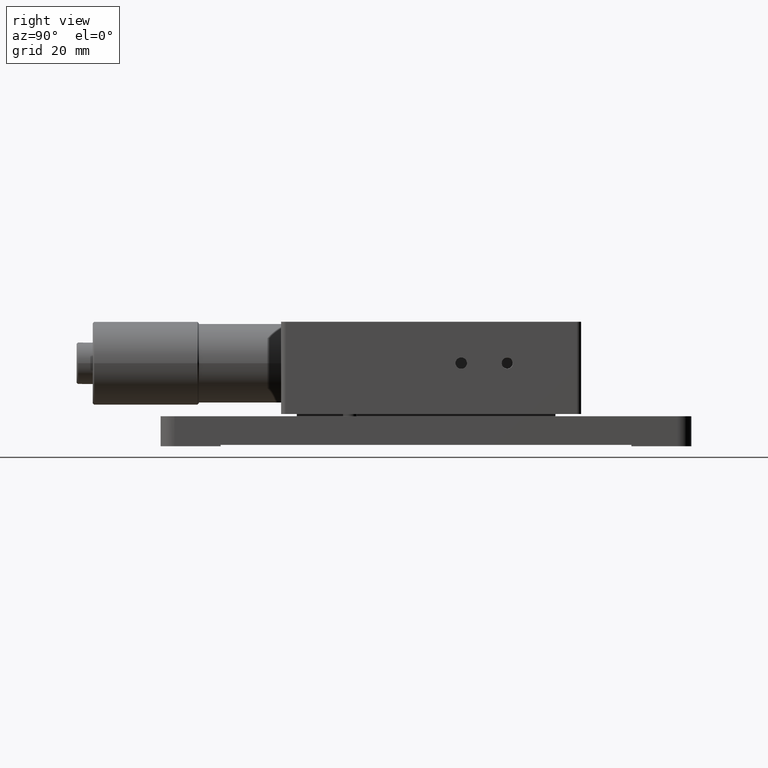
[diagram: clean part render]
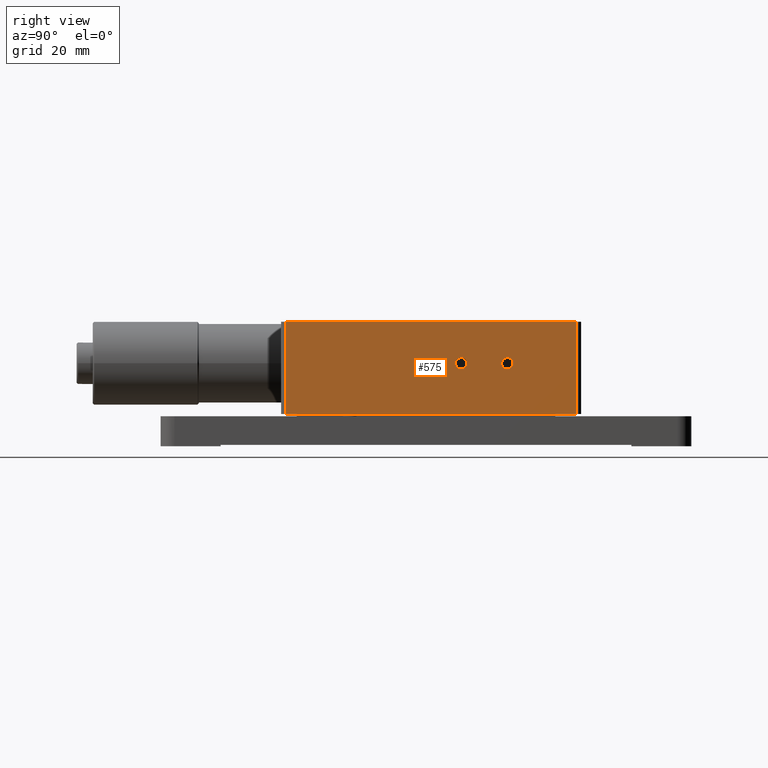
[diagram: same view with one face highlighted and labeled with its STEP entity id]
A machine part, right view. The second image highlights one B-rep face of the part: STEP entity #575.
In plain terms, the highlighted face is a freeform B-spline surface patch.
Its self-contained STEP definition (entity closure, byte-faithful):
#283=FACE_BOUND('',#1904,.T.);
#284=FACE_BOUND('',#1905,.T.);
#575=ADVANCED_FACE('',(#1228,#283,#284),#23944,.T.);
#1228=FACE_OUTER_BOUND('',#1903,.T.);
#1903=EDGE_LOOP('',(#3473,#3474,#3475,#3476));
#1904=EDGE_LOOP('',(#3477,#3478,#3479));
#1905=EDGE_LOOP('',(#3480,#3481,#3482));
#3473=ORIENTED_EDGE('',*,*,#19765,.T.);
#3474=ORIENTED_EDGE('',*,*,#19766,.T.);
#3475=ORIENTED_EDGE('',*,*,#19767,.T.);
#3476=ORIENTED_EDGE('',*,*,#19768,.T.);
#3477=ORIENTED_EDGE('',*,*,#19769,.T.);
#3478=ORIENTED_EDGE('',*,*,#19770,.T.);
#3479=ORIENTED_EDGE('',*,*,#19771,.T.);
#3480=ORIENTED_EDGE('',*,*,#19772,.T.);
#3481=ORIENTED_EDGE('',*,*,#19773,.T.);
#3482=ORIENTED_EDGE('',*,*,#19774,.T.);
#7098=PCURVE('',#23944,#10723);
#7099=PCURVE('',#23944,#10724);
#7100=PCURVE('',#23944,#10725);
#7101=PCURVE('',#23944,#10726);
#7102=PCURVE('',#23944,#10727);
#7103=PCURVE('',#23944,#10728);
#7104=PCURVE('',#23944,#10729);
#7105=PCURVE('',#23944,#10730);
#7106=PCURVE('',#23944,#10731);
#7107=PCURVE('',#23944,#10732);
#7184=PCURVE('',#24182,#10809);
#7189=PCURVE('',#24183,#10814);
#7190=PCURVE('',#24183,#10815);
#7223=PCURVE('',#24188,#10848);
#7228=PCURVE('',#24189,#10853);
#7229=PCURVE('',#24189,#10854);
#7339=PCURVE('',#24206,#10964);
#7353=PCURVE('',#23951,#10978);
#7359=PCURVE('',#24207,#10984);
#7423=PCURVE('',#23954,#11048);
#10723=DEFINITIONAL_REPRESENTATION('',(#14712),#50008);
#10724=DEFINITIONAL_REPRESENTATION('',(#14714),#50008);
#10725=DEFINITIONAL_REPRESENTATION('',(#14716),#50008);
#10726=DEFINITIONAL_REPRESENTATION('',(#14718),#50008);
#10727=DEFINITIONAL_REPRESENTATION('',(#21258),#50008);
#10728=DEFINITIONAL_REPRESENTATION('',(#21260),#50008);
#10729=DEFINITIONAL_REPRESENTATION('',(#21262),#50008);
#10730=DEFINITIONAL_REPRESENTATION('',(#21264),#50008);
#10731=DEFINITIONAL_REPRESENTATION('',(#21266),#50008);
#10732=DEFINITIONAL_REPRESENTATION('',(#21268),#50008);
#10809=DEFINITIONAL_REPRESENTATION('',(#14811),#50008);
#10814=DEFINITIONAL_REPRESENTATION('',(#14816),#50008);
#10815=DEFINITIONAL_REPRESENTATION('',(#14817),#50008);
#10848=DEFINITIONAL_REPRESENTATION('',(#14862),#50008);
#10853=DEFINITIONAL_REPRESENTATION('',(#14867),#50008);
#10854=DEFINITIONAL_REPRESENTATION('',(#14868),#50008);
#10964=DEFINITIONAL_REPRESENTATION('',(#15027),#50008);
#10978=DEFINITIONAL_REPRESENTATION('',(#15040),#50008);
#10984=DEFINITIONAL_REPRESENTATION('',(#15045),#50008);
#11048=DEFINITIONAL_REPRESENTATION('',(#15112),#50008);
#14711=B_SPLINE_CURVE_WITH_KNOTS('',1,(#34931,#34932),.UNSPECIFIED.,.F.,
 .F.,(2,2),(-20.,0.),.UNSPECIFIED.);
#14712=B_SPLINE_CURVE_WITH_KNOTS('',1,(#34933,#34934),.UNSPECIFIED.,.F.,
 .F.,(2,2),(-20.,0.),.UNSPECIFIED.);
#14713=B_SPLINE_CURVE_WITH_KNOTS('',1,(#34935,#34936),.UNSPECIFIED.,.F.,
 .F.,(2,2),(-63.0000000000001,0.),.UNSPECIFIED.);
#14714=B_SPLINE_CURVE_WITH_KNOTS('',1,(#34937,#34938),.UNSPECIFIED.,.F.,
 .F.,(2,2),(-63.0000000000001,0.),.UNSPECIFIED.);
#14715=B_SPLINE_CURVE_WITH_KNOTS('',1,(#34939,#34940),.UNSPECIFIED.,.F.,
 .F.,(2,2),(-20.,0.),.UNSPECIFIED.);
#14716=B_SPLINE_CURVE_WITH_KNOTS('',1,(#34941,#34942),.UNSPECIFIED.,.F.,
 .F.,(2,2),(-20.,0.),.UNSPECIFIED.);
#14717=B_SPLINE_CURVE_WITH_KNOTS('',1,(#34943,#34944),.UNSPECIFIED.,.F.,
 .F.,(2,2),(0.,63.0000000000001),.UNSPECIFIED.);
#14718=B_SPLINE_CURVE_WITH_KNOTS('',1,(#34945,#34946),.UNSPECIFIED.,.F.,
 .F.,(2,2),(0.,63.0000000000001),.UNSPECIFIED.);
#14811=B_SPLINE_CURVE_WITH_KNOTS('',1,(#35338,#35339),.UNSPECIFIED.,.F.,
 .F.,(2,2),(5.79388225138297,7.7251763351773),.UNSPECIFIED.);
#14816=B_SPLINE_CURVE_WITH_KNOTS('',1,(#35356,#35357),.UNSPECIFIED.,.F.,
 .F.,(2,2),(3.86258816758865,5.79388225138297),.UNSPECIFIED.);
#14817=B_SPLINE_CURVE_WITH_KNOTS('',1,(#35358,#35359),.UNSPECIFIED.,.F.,
 .F.,(2,2),(0.,3.86258816758865),.UNSPECIFIED.);
#14862=B_SPLINE_CURVE_WITH_KNOTS('',1,(#35503,#35504),.UNSPECIFIED.,.F.,
 .F.,(2,2),(5.79388225138298,7.7251763351773),.UNSPECIFIED.);
#14867=B_SPLINE_CURVE_WITH_KNOTS('',1,(#35521,#35522),.UNSPECIFIED.,.F.,
 .F.,(2,2),(3.86258816758865,5.79388225138298),.UNSPECIFIED.);
#14868=B_SPLINE_CURVE_WITH_KNOTS('',1,(#35523,#35524),.UNSPECIFIED.,.F.,
 .F.,(2,2),(0.,3.86258816758865),.UNSPECIFIED.);
#15027=B_SPLINE_CURVE_WITH_KNOTS('',1,(#36237,#36238),.UNSPECIFIED.,.F.,
 .F.,(2,2),(-20.,0.),.UNSPECIFIED.);
#15040=B_SPLINE_CURVE_WITH_KNOTS('',1,(#36288,#36289),.UNSPECIFIED.,.F.,
 .F.,(2,2),(0.,63.0000000000001),.UNSPECIFIED.);
#15045=B_SPLINE_CURVE_WITH_KNOTS('',1,(#36307,#36308),.UNSPECIFIED.,.F.,
 .F.,(2,2),(-20.,0.),.UNSPECIFIED.);
#15112=B_SPLINE_CURVE_WITH_KNOTS('',1,(#36567,#36568),.UNSPECIFIED.,.F.,
 .F.,(2,2),(-63.0000000000001,0.),.UNSPECIFIED.);
#17910=SURFACE_CURVE('',#14711,(#7098,#7359),.PCURVE_S1.);
#17911=SURFACE_CURVE('',#14713,(#7099,#7423),.PCURVE_S1.);
#17912=SURFACE_CURVE('',#14715,(#7100,#7339),.PCURVE_S1.);
#17913=SURFACE_CURVE('',#14717,(#7101,#7353),.PCURVE_S1.);
#17914=SURFACE_CURVE('',#21257,(#7102,#7228),.PCURVE_S1.);
#17915=SURFACE_CURVE('',#21259,(#7103,#7223),.PCURVE_S1.);
#17916=SURFACE_CURVE('',#21261,(#7104,#7229),.PCURVE_S1.);
#17917=SURFACE_CURVE('',#21263,(#7105,#7189),.PCURVE_S1.);
#17918=SURFACE_CURVE('',#21265,(#7106,#7184),.PCURVE_S1.);
#17919=SURFACE_CURVE('',#21267,(#7107,#7190),.PCURVE_S1.);
#19765=EDGE_CURVE('',#22929,#22930,#17910,.T.);
#19766=EDGE_CURVE('',#22930,#22931,#17911,.T.);
#19767=EDGE_CURVE('',#22931,#22932,#17912,.T.);
#19768=EDGE_CURVE('',#22932,#22929,#17913,.T.);
#19769=EDGE_CURVE('',#22934,#22993,#17914,.T.);
#19770=EDGE_CURVE('',#22993,#22933,#17915,.T.);
#19771=EDGE_CURVE('',#22933,#22934,#17916,.T.);
#19772=EDGE_CURVE('',#22936,#22974,#17917,.T.);
#19773=EDGE_CURVE('',#22974,#22935,#17918,.T.);
#19774=EDGE_CURVE('',#22935,#22936,#17919,.T.);
#21257=(
BOUNDED_CURVE()
B_SPLINE_CURVE(2,(#34947,#34948,#34949),.UNSPECIFIED.,.F.,.F.)
B_SPLINE_CURVE_WITH_KNOTS((3,3),(3.86258816758865,5.79388225138298),
 .UNSPECIFIED.)
CURVE()
GEOMETRIC_REPRESENTATION_ITEM()
RATIONAL_B_SPLINE_CURVE((1.,0.707106781186547,1.))
REPRESENTATION_ITEM('')
);
#21258=(
BOUNDED_CURVE()
B_SPLINE_CURVE(2,(#34950,#34951,#34952),.UNSPECIFIED.,.F.,.F.)
B_SPLINE_CURVE_WITH_KNOTS((3,3),(3.86258816758865,5.79388225138298),
 .UNSPECIFIED.)
CURVE()
GEOMETRIC_REPRESENTATION_ITEM()
RATIONAL_B_SPLINE_CURVE((1.,0.707106781186548,1.))
REPRESENTATION_ITEM('')
);
#21259=(
BOUNDED_CURVE()
B_SPLINE_CURVE(2,(#34953,#34954,#34955),.UNSPECIFIED.,.F.,.F.)
B_SPLINE_CURVE_WITH_KNOTS((3,3),(5.79388225138298,7.7251763351773),
 .UNSPECIFIED.)
CURVE()
GEOMETRIC_REPRESENTATION_ITEM()
RATIONAL_B_SPLINE_CURVE((1.,0.707106781186548,1.))
REPRESENTATION_ITEM('')
);
#21260=(
BOUNDED_CURVE()
B_SPLINE_CURVE(2,(#34956,#34957,#34958),.UNSPECIFIED.,.F.,.F.)
B_SPLINE_CURVE_WITH_KNOTS((3,3),(5.79388225138298,7.7251763351773),
 .UNSPECIFIED.)
CURVE()
GEOMETRIC_REPRESENTATION_ITEM()
RATIONAL_B_SPLINE_CURVE((1.,0.707106781186548,1.))
REPRESENTATION_ITEM('')
);
#21261=(
BOUNDED_CURVE()
B_SPLINE_CURVE(2,(#34959,#34960,#34961,#34962,#34963),.UNSPECIFIED.,.F.,
 .F.)
B_SPLINE_CURVE_WITH_KNOTS((3,2,3),(0.,1.93129408379433,3.86258816758865),
 .UNSPECIFIED.)
CURVE()
GEOMETRIC_REPRESENTATION_ITEM()
RATIONAL_B_SPLINE_CURVE((1.,0.707106781186547,1.,0.707106781186547,1.))
REPRESENTATION_ITEM('')
);
#21262=(
BOUNDED_CURVE()
B_SPLINE_CURVE(2,(#34964,#34965,#34966,#34967,#34968),.UNSPECIFIED.,.F.,
 .F.)
B_SPLINE_CURVE_WITH_KNOTS((3,2,3),(0.,1.93129408379433,3.86258816758865),
 .UNSPECIFIED.)
CURVE()
GEOMETRIC_REPRESENTATION_ITEM()
RATIONAL_B_SPLINE_CURVE((1.,0.707106781186548,1.,0.707106781186548,1.))
REPRESENTATION_ITEM('')
);
#21263=(
BOUNDED_CURVE()
B_SPLINE_CURVE(2,(#34969,#34970,#34971),.UNSPECIFIED.,.F.,.F.)
B_SPLINE_CURVE_WITH_KNOTS((3,3),(3.86258816758865,5.79388225138297),
 .UNSPECIFIED.)
CURVE()
GEOMETRIC_REPRESENTATION_ITEM()
RATIONAL_B_SPLINE_CURVE((1.,0.707106781186547,1.))
REPRESENTATION_ITEM('')
);
#21264=(
BOUNDED_CURVE()
B_SPLINE_CURVE(2,(#34972,#34973,#34974),.UNSPECIFIED.,.F.,.F.)
B_SPLINE_CURVE_WITH_KNOTS((3,3),(3.86258816758865,5.79388225138297),
 .UNSPECIFIED.)
CURVE()
GEOMETRIC_REPRESENTATION_ITEM()
RATIONAL_B_SPLINE_CURVE((1.,0.707106781186548,1.))
REPRESENTATION_ITEM('')
);
#21265=(
BOUNDED_CURVE()
B_SPLINE_CURVE(2,(#34975,#34976,#34977),.UNSPECIFIED.,.F.,.F.)
B_SPLINE_CURVE_WITH_KNOTS((3,3),(5.79388225138297,7.7251763351773),
 .UNSPECIFIED.)
CURVE()
GEOMETRIC_REPRESENTATION_ITEM()
RATIONAL_B_SPLINE_CURVE((1.,0.707106781186548,1.))
REPRESENTATION_ITEM('')
);
#21266=(
BOUNDED_CURVE()
B_SPLINE_CURVE(2,(#34978,#34979,#34980),.UNSPECIFIED.,.F.,.F.)
B_SPLINE_CURVE_WITH_KNOTS((3,3),(5.79388225138297,7.7251763351773),
 .UNSPECIFIED.)
CURVE()
GEOMETRIC_REPRESENTATION_ITEM()
RATIONAL_B_SPLINE_CURVE((1.,0.707106781186548,1.))
REPRESENTATION_ITEM('')
);
#21267=(
BOUNDED_CURVE()
B_SPLINE_CURVE(2,(#34981,#34982,#34983,#34984,#34985),.UNSPECIFIED.,.F.,
 .F.)
B_SPLINE_CURVE_WITH_KNOTS((3,2,3),(0.,1.93129408379432,3.86258816758865),
 .UNSPECIFIED.)
CURVE()
GEOMETRIC_REPRESENTATION_ITEM()
RATIONAL_B_SPLINE_CURVE((1.,0.707106781186547,1.,0.707106781186547,1.))
REPRESENTATION_ITEM('')
);
#21268=(
BOUNDED_CURVE()
B_SPLINE_CURVE(2,(#34986,#34987,#34988,#34989,#34990),.UNSPECIFIED.,.F.,
 .F.)
B_SPLINE_CURVE_WITH_KNOTS((3,2,3),(0.,1.93129408379432,3.86258816758865),
 .UNSPECIFIED.)
CURVE()
GEOMETRIC_REPRESENTATION_ITEM()
RATIONAL_B_SPLINE_CURVE((1.,0.707106781186548,1.,0.707106781186548,1.))
REPRESENTATION_ITEM('')
);
#22929=VERTEX_POINT('',#30572);
#22930=VERTEX_POINT('',#30573);
#22931=VERTEX_POINT('',#30574);
#22932=VERTEX_POINT('',#30575);
#22933=VERTEX_POINT('',#30576);
#22934=VERTEX_POINT('',#30577);
#22935=VERTEX_POINT('',#30578);
#22936=VERTEX_POINT('',#30579);
#22974=VERTEX_POINT('',#30617);
#22993=VERTEX_POINT('',#30636);
#23944=B_SPLINE_SURFACE_WITH_KNOTS('',1,1,((#25894,#25895),(#25896,#25897)),
 .UNSPECIFIED.,.F.,.F.,.F.,(2,2),(2,2),(-10.37,13.87),(-37.92,37.9200000000001),
 .UNSPECIFIED.);
#23951=B_SPLINE_SURFACE_WITH_KNOTS('',1,1,((#26520,#26521),(#26522,#26523)),
 .UNSPECIFIED.,.F.,.F.,.F.,(2,2),(2,2),(-12.4743956043956,65.7656043956045),
(10.93,28.57),.UNSPECIFIED.);
#23954=B_SPLINE_SURFACE_WITH_KNOTS('',1,1,((#26678,#26679),(#26680,#26681)),
 .UNSPECIFIED.,.F.,.F.,.F.,(2,2),(2,2),(-32.52,32.52),(-39.12,39.1200000000001),
 .UNSPECIFIED.);
#24182=(
BOUNDED_SURFACE()
B_SPLINE_SURFACE(1,2,((#26082,#26083,#26084,#26085,#26086,#26087,#26088,
#26089,#26090),(#26091,#26092,#26093,#26094,#26095,#26096,#26097,#26098,
#26099)),.UNSPECIFIED.,.F.,.F.,.F.)
B_SPLINE_SURFACE_WITH_KNOTS((2,2),(3,2,2,2,3),(0.,8.34000000000012),(0.,
1.5707963267949,3.14159265358979,4.71238898038469,6.28318530717959),
 .UNSPECIFIED.)
GEOMETRIC_REPRESENTATION_ITEM()
RATIONAL_B_SPLINE_SURFACE(((1.,0.707106781186548,1.,0.707106781186548,1.,
0.707106781186548,1.,0.707106781186548,1.),(1.,0.707106781186548,1.,0.707106781186548,
1.,0.707106781186548,1.,0.707106781186548,1.)))
REPRESENTATION_ITEM('')
SURFACE()
);
#24183=(
BOUNDED_SURFACE()
B_SPLINE_SURFACE(1,2,((#26100,#26101,#26102,#26103,#26104,#26105,#26106,
#26107,#26108),(#26109,#26110,#26111,#26112,#26113,#26114,#26115,#26116,
#26117)),.UNSPECIFIED.,.F.,.F.,.F.)
B_SPLINE_SURFACE_WITH_KNOTS((2,2),(3,2,2,2,3),(0.,8.34000000000012),(0.,
1.5707963267949,3.14159265358979,4.71238898038469,6.28318530717959),
 .UNSPECIFIED.)
GEOMETRIC_REPRESENTATION_ITEM()
RATIONAL_B_SPLINE_SURFACE(((1.,0.707106781186548,1.,0.707106781186548,1.,
0.707106781186548,1.,0.707106781186548,1.),(1.,0.707106781186548,1.,0.707106781186548,
1.,0.707106781186548,1.,0.707106781186548,1.)))
REPRESENTATION_ITEM('')
SURFACE()
);
#24188=(
BOUNDED_SURFACE()
B_SPLINE_SURFACE(1,2,((#26194,#26195,#26196,#26197,#26198,#26199,#26200,
#26201,#26202),(#26203,#26204,#26205,#26206,#26207,#26208,#26209,#26210,
#26211)),.UNSPECIFIED.,.F.,.F.,.F.)
B_SPLINE_SURFACE_WITH_KNOTS((2,2),(3,2,2,2,3),(0.,6.96),(0.,1.5707963267949,
3.14159265358979,4.71238898038469,6.28318530717959),.UNSPECIFIED.)
GEOMETRIC_REPRESENTATION_ITEM()
RATIONAL_B_SPLINE_SURFACE(((1.,0.707106781186548,1.,0.707106781186548,1.,
0.707106781186548,1.,0.707106781186548,1.),(1.,0.707106781186548,1.,0.707106781186548,
1.,0.707106781186548,1.,0.707106781186548,1.)))
REPRESENTATION_ITEM('')
SURFACE()
);
#24189=(
BOUNDED_SURFACE()
B_SPLINE_SURFACE(1,2,((#26212,#26213,#26214,#26215,#26216,#26217,#26218,
#26219,#26220),(#26221,#26222,#26223,#26224,#26225,#26226,#26227,#26228,
#26229)),.UNSPECIFIED.,.F.,.F.,.F.)
B_SPLINE_SURFACE_WITH_KNOTS((2,2),(3,2,2,2,3),(0.,6.96),(0.,1.5707963267949,
3.14159265358979,4.71238898038469,6.28318530717959),.UNSPECIFIED.)
GEOMETRIC_REPRESENTATION_ITEM()
RATIONAL_B_SPLINE_SURFACE(((1.,0.707106781186548,1.,0.707106781186548,1.,
0.707106781186548,1.,0.707106781186548,1.),(1.,0.707106781186548,1.,0.707106781186548,
1.,0.707106781186548,1.,0.707106781186548,1.)))
REPRESENTATION_ITEM('')
SURFACE()
);
#24206=(
BOUNDED_SURFACE()
B_SPLINE_SURFACE(2,1,((#26502,#26503),(#26504,#26505),(#26506,#26507),(#26508,
#26509),(#26510,#26511),(#26512,#26513),(#26514,#26515),(#26516,#26517),
(#26518,#26519)),.UNSPECIFIED.,.T.,.F.,.F.)
B_SPLINE_SURFACE_WITH_KNOTS((3,2,2,2,3),(2,2),(0.,1.5707963267949,3.14159265358979,
4.71238898038469,6.28318530717959),(0.,24.24),.UNSPECIFIED.)
GEOMETRIC_REPRESENTATION_ITEM()
RATIONAL_B_SPLINE_SURFACE(((1.,1.),(0.707106781186548,0.707106781186548),
(1.,1.),(0.707106781186548,0.707106781186548),(1.,1.),(0.707106781186548,
0.707106781186548),(1.,1.),(0.707106781186548,0.707106781186548),(1.,1.)))
REPRESENTATION_ITEM('')
SURFACE()
);
#24207=(
BOUNDED_SURFACE()
B_SPLINE_SURFACE(2,1,((#26524,#26525),(#26526,#26527),(#26528,#26529),(#26530,
#26531),(#26532,#26533),(#26534,#26535),(#26536,#26537),(#26538,#26539),
(#26540,#26541)),.UNSPECIFIED.,.T.,.F.,.F.)
B_SPLINE_SURFACE_WITH_KNOTS((3,2,2,2,3),(2,2),(0.,1.5707963267949,3.14159265358979,
4.71238898038469,6.28318530717959),(0.,24.24),.UNSPECIFIED.)
GEOMETRIC_REPRESENTATION_ITEM()
RATIONAL_B_SPLINE_SURFACE(((1.,1.),(0.707106781186548,0.707106781186548),
(1.,1.),(0.707106781186548,0.707106781186548),(1.,1.),(0.707106781186548,
0.707106781186548),(1.,1.),(0.707106781186548,0.707106781186548),(1.,1.)))
REPRESENTATION_ITEM('')
SURFACE()
);
#25894=CARTESIAN_POINT('',(27.6270493497981,14.3531964156235,52.4487996664619));
#25895=CARTESIAN_POINT('',(27.6270493497981,14.3531964156235,-23.3912003335382));
#25896=CARTESIAN_POINT('',(27.6270493497981,-9.88680358437653,52.4487996664619));
#25897=CARTESIAN_POINT('',(27.6270493497981,-9.88680358437653,-23.3912003335382));
#26082=CARTESIAN_POINT('',(28.4220493497981,2.00369641562347,-1.97120033353814));
#26083=CARTESIAN_POINT('',(28.4220493497981,2.00369641562347,-0.741700333538142));
#26084=CARTESIAN_POINT('',(28.4220493497981,3.23319641562347,-0.741700333538142));
#26085=CARTESIAN_POINT('',(28.4220493497981,4.46269641562347,-0.741700333538141));
#26086=CARTESIAN_POINT('',(28.4220493497981,4.46269641562347,-1.97120033353814));
#26087=CARTESIAN_POINT('',(28.4220493497981,4.46269641562347,-3.20070033353814));
#26088=CARTESIAN_POINT('',(28.4220493497981,3.23319641562347,-3.20070033353814));
#26089=CARTESIAN_POINT('',(28.4220493497981,2.00369641562347,-3.20070033353814));
#26090=CARTESIAN_POINT('',(28.4220493497981,2.00369641562347,-1.97120033353814));
#26091=CARTESIAN_POINT('',(20.082049349798,2.00369641562347,-1.97120033353814));
#26092=CARTESIAN_POINT('',(20.082049349798,2.00369641562347,-0.741700333538143));
#26093=CARTESIAN_POINT('',(20.082049349798,3.23319641562347,-0.741700333538142));
#26094=CARTESIAN_POINT('',(20.082049349798,4.46269641562347,-0.741700333538141));
#26095=CARTESIAN_POINT('',(20.082049349798,4.46269641562347,-1.97120033353814));
#26096=CARTESIAN_POINT('',(20.082049349798,4.46269641562347,-3.20070033353814));
#26097=CARTESIAN_POINT('',(20.082049349798,3.23319641562347,-3.20070033353814));
#26098=CARTESIAN_POINT('',(20.082049349798,2.00369641562347,-3.20070033353814));
#26099=CARTESIAN_POINT('',(20.082049349798,2.00369641562347,-1.97120033353814));
#26100=CARTESIAN_POINT('',(28.4220493497981,2.00369641562347,-1.97120033353814));
#26101=CARTESIAN_POINT('',(28.4220493497981,2.00369641562347,-0.741700333538142));
#26102=CARTESIAN_POINT('',(28.4220493497981,3.23319641562347,-0.741700333538142));
#26103=CARTESIAN_POINT('',(28.4220493497981,4.46269641562347,-0.741700333538141));
#26104=CARTESIAN_POINT('',(28.4220493497981,4.46269641562347,-1.97120033353814));
#26105=CARTESIAN_POINT('',(28.4220493497981,4.46269641562347,-3.20070033353814));
#26106=CARTESIAN_POINT('',(28.4220493497981,3.23319641562347,-3.20070033353814));
#26107=CARTESIAN_POINT('',(28.4220493497981,2.00369641562347,-3.20070033353814));
#26108=CARTESIAN_POINT('',(28.4220493497981,2.00369641562347,-1.97120033353814));
#26109=CARTESIAN_POINT('',(20.082049349798,2.00369641562347,-1.97120033353814));
#26110=CARTESIAN_POINT('',(20.082049349798,2.00369641562347,-0.741700333538143));
#26111=CARTESIAN_POINT('',(20.082049349798,3.23319641562347,-0.741700333538142));
#26112=CARTESIAN_POINT('',(20.082049349798,4.46269641562347,-0.741700333538141));
#26113=CARTESIAN_POINT('',(20.082049349798,4.46269641562347,-1.97120033353814));
#26114=CARTESIAN_POINT('',(20.082049349798,4.46269641562347,-3.20070033353814));
#26115=CARTESIAN_POINT('',(20.082049349798,3.23319641562347,-3.20070033353814));
#26116=CARTESIAN_POINT('',(20.082049349798,2.00369641562347,-3.20070033353814));
#26117=CARTESIAN_POINT('',(20.082049349798,2.00369641562347,-1.97120033353814));
#26194=CARTESIAN_POINT('',(28.3070493497981,2.00369641562347,8.02879966646186));
#26195=CARTESIAN_POINT('',(28.3070493497981,2.00369641562347,9.25829966646186));
#26196=CARTESIAN_POINT('',(28.3070493497981,3.23319641562347,9.25829966646186));
#26197=CARTESIAN_POINT('',(28.3070493497981,4.46269641562347,9.25829966646186));
#26198=CARTESIAN_POINT('',(28.3070493497981,4.46269641562347,8.02879966646186));
#26199=CARTESIAN_POINT('',(28.3070493497981,4.46269641562347,6.79929966646186));
#26200=CARTESIAN_POINT('',(28.3070493497981,3.23319641562347,6.79929966646186));
#26201=CARTESIAN_POINT('',(28.3070493497981,2.00369641562347,6.79929966646186));
#26202=CARTESIAN_POINT('',(28.3070493497981,2.00369641562347,8.02879966646186));
#26203=CARTESIAN_POINT('',(21.3470493497981,2.00369641562347,8.02879966646186));
#26204=CARTESIAN_POINT('',(21.3470493497981,2.00369641562347,9.25829966646186));
#26205=CARTESIAN_POINT('',(21.3470493497981,3.23319641562347,9.25829966646186));
#26206=CARTESIAN_POINT('',(21.3470493497981,4.46269641562347,9.25829966646186));
#26207=CARTESIAN_POINT('',(21.3470493497981,4.46269641562347,8.02879966646186));
#26208=CARTESIAN_POINT('',(21.3470493497981,4.46269641562347,6.79929966646186));
#26209=CARTESIAN_POINT('',(21.3470493497981,3.23319641562347,6.79929966646186));
#26210=CARTESIAN_POINT('',(21.3470493497981,2.00369641562347,6.79929966646186));
#26211=CARTESIAN_POINT('',(21.3470493497981,2.00369641562347,8.02879966646186));
#26212=CARTESIAN_POINT('',(28.3070493497981,2.00369641562347,8.02879966646186));
#26213=CARTESIAN_POINT('',(28.3070493497981,2.00369641562347,9.25829966646186));
#26214=CARTESIAN_POINT('',(28.3070493497981,3.23319641562347,9.25829966646186));
#26215=CARTESIAN_POINT('',(28.3070493497981,4.46269641562347,9.25829966646186));
#26216=CARTESIAN_POINT('',(28.3070493497981,4.46269641562347,8.02879966646186));
#26217=CARTESIAN_POINT('',(28.3070493497981,4.46269641562347,6.79929966646186));
#26218=CARTESIAN_POINT('',(28.3070493497981,3.23319641562347,6.79929966646186));
#26219=CARTESIAN_POINT('',(28.3070493497981,2.00369641562347,6.79929966646186));
#26220=CARTESIAN_POINT('',(28.3070493497981,2.00369641562347,8.02879966646186));
#26221=CARTESIAN_POINT('',(21.3470493497981,2.00369641562347,8.02879966646186));
#26222=CARTESIAN_POINT('',(21.3470493497981,2.00369641562347,9.25829966646186));
#26223=CARTESIAN_POINT('',(21.3470493497981,3.23319641562347,9.25829966646186));
#26224=CARTESIAN_POINT('',(21.3470493497981,4.46269641562347,9.25829966646186));
#26225=CARTESIAN_POINT('',(21.3470493497981,4.46269641562347,8.02879966646186));
#26226=CARTESIAN_POINT('',(21.3470493497981,4.46269641562347,6.79929966646186));
#26227=CARTESIAN_POINT('',(21.3470493497981,3.23319641562347,6.79929966646186));
#26228=CARTESIAN_POINT('',(21.3470493497981,2.00369641562347,6.79929966646186));
#26229=CARTESIAN_POINT('',(21.3470493497981,2.00369641562347,8.02879966646186));
#26502=CARTESIAN_POINT('',(25.6270493497981,14.3531964156235,46.0287996664619));
#26503=CARTESIAN_POINT('',(25.6270493497981,-9.88680358437653,46.0287996664619));
#26504=CARTESIAN_POINT('',(25.6270493497981,14.3531964156235,45.0287996664619));
#26505=CARTESIAN_POINT('',(25.6270493497981,-9.88680358437653,45.0287996664619));
#26506=CARTESIAN_POINT('',(26.6270493497981,14.3531964156235,45.0287996664619));
#26507=CARTESIAN_POINT('',(26.6270493497981,-9.88680358437653,45.0287996664619));
#26508=CARTESIAN_POINT('',(27.6270493497981,14.3531964156235,45.0287996664619));
#26509=CARTESIAN_POINT('',(27.6270493497981,-9.88680358437653,45.0287996664619));
#26510=CARTESIAN_POINT('',(27.6270493497981,14.3531964156235,46.0287996664619));
#26511=CARTESIAN_POINT('',(27.6270493497981,-9.88680358437653,46.0287996664619));
#26512=CARTESIAN_POINT('',(27.6270493497981,14.3531964156235,47.0287996664619));
#26513=CARTESIAN_POINT('',(27.6270493497981,-9.88680358437653,47.0287996664619));
#26514=CARTESIAN_POINT('',(26.6270493497981,14.3531964156235,47.0287996664619));
#26515=CARTESIAN_POINT('',(26.6270493497981,-9.88680358437653,47.0287996664619));
#26516=CARTESIAN_POINT('',(25.6270493497981,14.3531964156235,47.0287996664619));
#26517=CARTESIAN_POINT('',(25.6270493497981,-9.88680358437653,47.0287996664619));
#26518=CARTESIAN_POINT('',(25.6270493497981,14.3531964156235,46.0287996664619));
#26519=CARTESIAN_POINT('',(25.6270493497981,-9.88680358437653,46.0287996664619));
#26520=CARTESIAN_POINT('',(11.5570493497981,-7.76680358437654,53.6487996664619));
#26521=CARTESIAN_POINT('',(29.1970493497981,-7.76680358437653,53.6487996664619));
#26522=CARTESIAN_POINT('',(11.5570493497981,-7.76680358437654,-24.5912003335382));
#26523=CARTESIAN_POINT('',(29.1970493497981,-7.76680358437653,-24.5912003335382));
#26524=CARTESIAN_POINT('',(25.6270493497981,-9.88680358437653,-16.9712003335382));
#26525=CARTESIAN_POINT('',(25.6270493497981,14.3531964156235,-16.9712003335382));
#26526=CARTESIAN_POINT('',(25.6270493497981,-9.88680358437653,-15.9712003335382));
#26527=CARTESIAN_POINT('',(25.6270493497981,14.3531964156235,-15.9712003335382));
#26528=CARTESIAN_POINT('',(26.6270493497981,-9.88680358437653,-15.9712003335382));
#26529=CARTESIAN_POINT('',(26.6270493497981,14.3531964156235,-15.9712003335382));
#26530=CARTESIAN_POINT('',(27.6270493497981,-9.88680358437653,-15.9712003335382));
#26531=CARTESIAN_POINT('',(27.6270493497981,14.3531964156235,-15.9712003335382));
#26532=CARTESIAN_POINT('',(27.6270493497981,-9.88680358437653,-16.9712003335382));
#26533=CARTESIAN_POINT('',(27.6270493497981,14.3531964156235,-16.9712003335382));
#26534=CARTESIAN_POINT('',(27.6270493497981,-9.88680358437653,-17.9712003335382));
#26535=CARTESIAN_POINT('',(27.6270493497981,14.3531964156235,-17.9712003335382));
#26536=CARTESIAN_POINT('',(26.6270493497981,-9.88680358437653,-17.9712003335382));
#26537=CARTESIAN_POINT('',(26.6270493497981,14.3531964156235,-17.9712003335382));
#26538=CARTESIAN_POINT('',(25.6270493497981,-9.88680358437653,-17.9712003335382));
#26539=CARTESIAN_POINT('',(25.6270493497981,14.3531964156235,-17.9712003335382));
#26540=CARTESIAN_POINT('',(25.6270493497981,-9.88680358437653,-16.9712003335382));
#26541=CARTESIAN_POINT('',(25.6270493497981,14.3531964156235,-16.9712003335382));
#26678=CARTESIAN_POINT('',(-31.8929506502019,12.2331964156235,53.6487996664619));
#26679=CARTESIAN_POINT('',(-31.8929506502019,12.2331964156235,-24.5912003335382));
#26680=CARTESIAN_POINT('',(33.1470493497981,12.2331964156235,53.6487996664619));
#26681=CARTESIAN_POINT('',(33.1470493497981,12.2331964156235,-24.5912003335382));
#30572=CARTESIAN_POINT('',(27.6270493497981,-7.76680358437653,-16.9712003335382));
#30573=CARTESIAN_POINT('',(27.6270493497981,12.2331964156235,-16.9712003335382));
#30574=CARTESIAN_POINT('',(27.6270493497981,12.2331964156235,46.0287996664619));
#30575=CARTESIAN_POINT('',(27.6270493497981,-7.76680358437653,46.0287996664619));
#30576=CARTESIAN_POINT('',(27.6270493497981,3.23319641562347,9.25829966646186));
#30577=CARTESIAN_POINT('',(27.6270493497981,3.23319641562347,6.79929966646186));
#30578=CARTESIAN_POINT('',(27.6270493497981,3.23319641562347,-0.741700333538142));
#30579=CARTESIAN_POINT('',(27.6270493497981,3.23319641562347,-3.20070033353814));
#30617=CARTESIAN_POINT('',(27.6270493497981,2.00369641562347,-1.97120033353814));
#30636=CARTESIAN_POINT('',(27.6270493497981,2.00369641562347,8.02879966646186));
#34931=CARTESIAN_POINT('',(27.6270493497981,-7.76680358437653,-16.9712003335382));
#34932=CARTESIAN_POINT('',(27.6270493497981,12.2331964156235,-16.9712003335382));
#34933=CARTESIAN_POINT('',(11.75,31.5000000000001));
#34934=CARTESIAN_POINT('',(-8.25000000000003,31.5000000000001));
#34935=CARTESIAN_POINT('',(27.6270493497981,12.2331964156235,-16.9712003335382));
#34936=CARTESIAN_POINT('',(27.6270493497981,12.2331964156235,46.0287996664619));
#34937=CARTESIAN_POINT('',(-8.25000000000003,31.5000000000001));
#34938=CARTESIAN_POINT('',(-8.25000000000003,-31.5));
#34939=CARTESIAN_POINT('',(27.6270493497981,12.2331964156235,46.0287996664619));
#34940=CARTESIAN_POINT('',(27.6270493497981,-7.76680358437653,46.0287996664619));
#34941=CARTESIAN_POINT('',(-8.25000000000003,-31.5));
#34942=CARTESIAN_POINT('',(11.75,-31.5));
#34943=CARTESIAN_POINT('',(27.6270493497981,-7.76680358437653,46.0287996664619));
#34944=CARTESIAN_POINT('',(27.6270493497981,-7.76680358437653,-16.9712003335382));
#34945=CARTESIAN_POINT('',(11.75,-31.5));
#34946=CARTESIAN_POINT('',(11.75,31.5000000000001));
#34947=CARTESIAN_POINT('',(27.6270493497981,3.23319641562347,6.79929966646186));
#34948=CARTESIAN_POINT('',(27.6270493497981,2.00369641562347,6.79929966646186));
#34949=CARTESIAN_POINT('',(27.6270493497981,2.00369641562347,8.02879966646186));
#34950=CARTESIAN_POINT('',(0.75,7.72950000000004));
#34951=CARTESIAN_POINT('',(1.9795,7.72950000000004));
#34952=CARTESIAN_POINT('',(1.9795,6.50000000000004));
#34953=CARTESIAN_POINT('',(27.6270493497981,2.00369641562347,8.02879966646186));
#34954=CARTESIAN_POINT('',(27.6270493497981,2.00369641562347,9.25829966646186));
#34955=CARTESIAN_POINT('',(27.6270493497981,3.23319641562347,9.25829966646186));
#34956=CARTESIAN_POINT('',(1.9795,6.50000000000004));
#34957=CARTESIAN_POINT('',(1.9795,5.27050000000004));
#34958=CARTESIAN_POINT('',(0.75,5.27050000000004));
#34959=CARTESIAN_POINT('',(27.6270493497981,3.23319641562347,9.25829966646186));
#34960=CARTESIAN_POINT('',(27.6270493497981,4.46269641562347,9.25829966646186));
#34961=CARTESIAN_POINT('',(27.6270493497981,4.46269641562347,8.02879966646186));
#34962=CARTESIAN_POINT('',(27.6270493497981,4.46269641562347,6.79929966646186));
#34963=CARTESIAN_POINT('',(27.6270493497981,3.23319641562347,6.79929966646186));
#34964=CARTESIAN_POINT('',(0.75,5.27050000000004));
#34965=CARTESIAN_POINT('',(-0.4795,5.27050000000004));
#34966=CARTESIAN_POINT('',(-0.4795,6.50000000000004));
#34967=CARTESIAN_POINT('',(-0.4795,7.72950000000004));
#34968=CARTESIAN_POINT('',(0.75,7.72950000000004));
#34969=CARTESIAN_POINT('',(27.6270493497981,3.23319641562347,-3.20070033353814));
#34970=CARTESIAN_POINT('',(27.6270493497981,2.00369641562347,-3.20070033353814));
#34971=CARTESIAN_POINT('',(27.6270493497981,2.00369641562347,-1.97120033353814));
#34972=CARTESIAN_POINT('',(0.75,17.7295));
#34973=CARTESIAN_POINT('',(1.9795,17.7295));
#34974=CARTESIAN_POINT('',(1.9795,16.5));
#34975=CARTESIAN_POINT('',(27.6270493497981,2.00369641562347,-1.97120033353814));
#34976=CARTESIAN_POINT('',(27.6270493497981,2.00369641562347,-0.741700333538143));
#34977=CARTESIAN_POINT('',(27.6270493497981,3.23319641562347,-0.741700333538142));
#34978=CARTESIAN_POINT('',(1.9795,16.5));
#34979=CARTESIAN_POINT('',(1.9795,15.2705));
#34980=CARTESIAN_POINT('',(0.75,15.2705));
#34981=CARTESIAN_POINT('',(27.6270493497981,3.23319641562347,-0.741700333538142));
#34982=CARTESIAN_POINT('',(27.6270493497981,4.46269641562347,-0.741700333538142));
#34983=CARTESIAN_POINT('',(27.6270493497981,4.46269641562347,-1.97120033353814));
#34984=CARTESIAN_POINT('',(27.6270493497981,4.46269641562347,-3.20070033353814));
#34985=CARTESIAN_POINT('',(27.6270493497981,3.23319641562347,-3.20070033353814));
#34986=CARTESIAN_POINT('',(0.75,15.2705));
#34987=CARTESIAN_POINT('',(-0.4795,15.2705));
#34988=CARTESIAN_POINT('',(-0.4795,16.5));
#34989=CARTESIAN_POINT('',(-0.4795,17.7295));
#34990=CARTESIAN_POINT('',(0.75,17.7295));
#35338=CARTESIAN_POINT('',(0.795000000000013,0.));
#35339=CARTESIAN_POINT('',(0.795000000000013,1.5707963267949));
#35356=CARTESIAN_POINT('',(0.795000000000013,4.71238898038469));
#35357=CARTESIAN_POINT('',(0.795000000000013,6.28318530717959));
#35358=CARTESIAN_POINT('',(0.795000000000013,1.5707963267949));
#35359=CARTESIAN_POINT('',(0.795000000000013,4.71238898038469));
#35503=CARTESIAN_POINT('',(0.680000000000002,0.));
#35504=CARTESIAN_POINT('',(0.680000000000002,1.5707963267949));
#35521=CARTESIAN_POINT('',(0.680000000000002,4.71238898038469));
#35522=CARTESIAN_POINT('',(0.680000000000002,6.28318530717959));
#35523=CARTESIAN_POINT('',(0.680000000000002,1.5707963267949));
#35524=CARTESIAN_POINT('',(0.680000000000002,4.71238898038469));
#36237=CARTESIAN_POINT('',(3.14159265358979,2.12));
#36238=CARTESIAN_POINT('',(3.14159265358979,22.12));
#36288=CARTESIAN_POINT('',(-4.8543956043956,27.));
#36289=CARTESIAN_POINT('',(58.1456043956045,27.));
#36307=CARTESIAN_POINT('',(3.14159265358979,2.12));
#36308=CARTESIAN_POINT('',(3.14159265358979,22.12));
#36567=CARTESIAN_POINT('',(27.,31.5000000000001));
#36568=CARTESIAN_POINT('',(27.,-31.5));
#50008=(
GEOMETRIC_REPRESENTATION_CONTEXT(2)
PARAMETRIC_REPRESENTATION_CONTEXT()
REPRESENTATION_CONTEXT('pspace','')
);